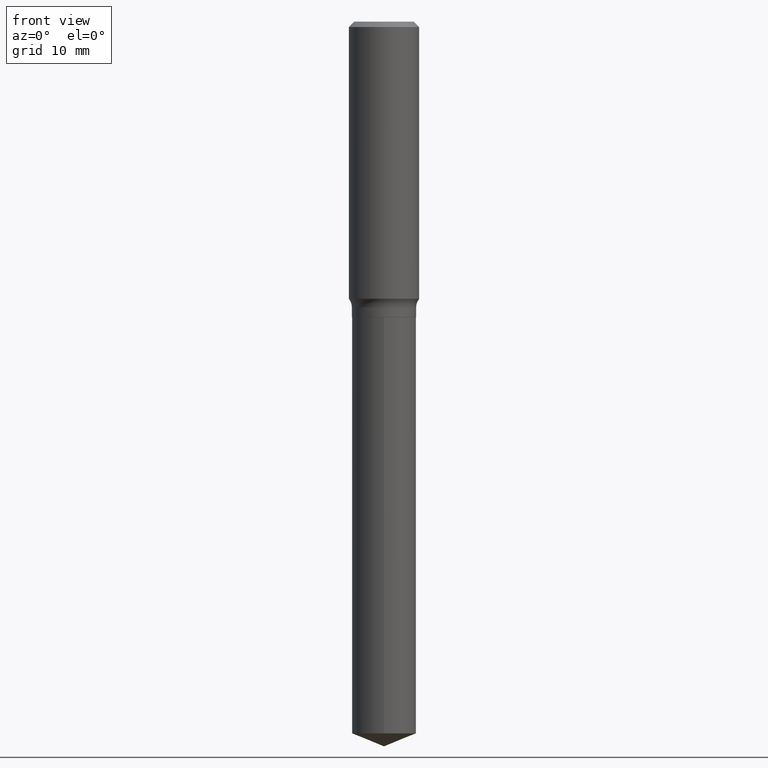
[diagram: clean part render]
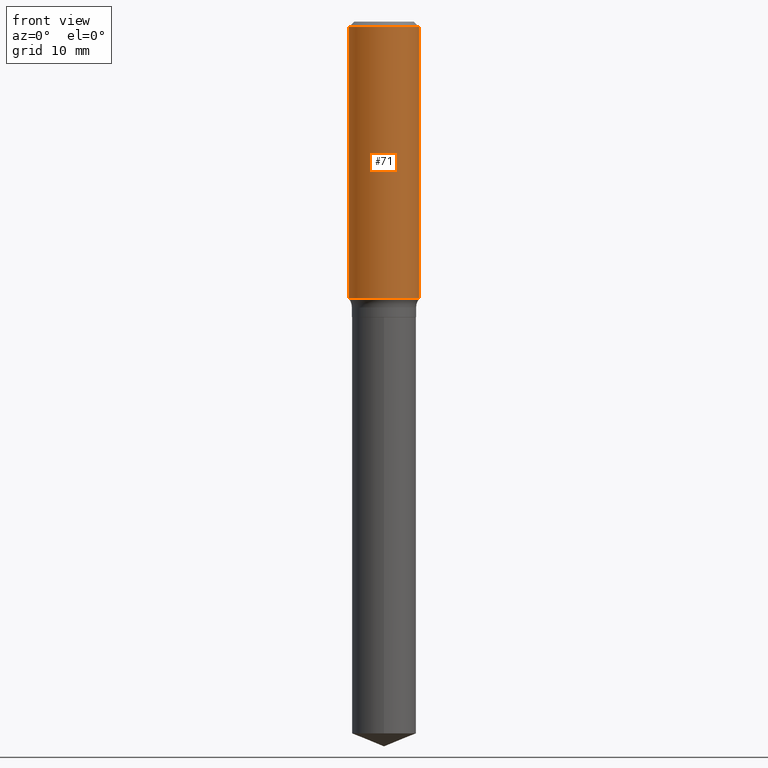
[diagram: same view with one face highlighted and labeled with its STEP entity id]
A machine part, front view. The second image highlights one B-rep face of the part: STEP entity #71.
In plain terms, the highlighted cylindrical surface (edge-blend (fillet) strip) has radius 5 mm, axis along (-0, 0, 1).
Its self-contained STEP definition (entity closure, byte-faithful):
#11 = DIRECTION ( 'NONE',  ( -2.445468806185136877E-29, 3.491481338843145188E-15, 1.000000000000000000 ) ) ;
#16 = CARTESIAN_POINT ( 'NONE',  ( -0.1968500000000002470, -4.014145957537273181E-15, -1.550301664987419059 ) ) ;
#34 = CARTESIAN_POINT ( 'NONE',  ( -0.1968500000000001360, 1.398703375343758182E-15, -9.682923725166790684E-30 ) ) ;
#37 = DIRECTION ( 'NONE',  ( 1.000000000000000000, -6.982962677686266711E-15, 0.000000000000000000 ) ) ;
#71 = ADVANCED_FACE ( 'NONE', ( #406 ), #365, .T. ) ;
#74 = CARTESIAN_POINT ( 'NONE',  ( 0.000000000000000000, 0.000000000000000000, 0.000000000000000000 ) ) ;
#86 = ORIENTED_EDGE ( 'NONE', *, *, #248, .F. ) ;
#103 = VERTEX_POINT ( 'NONE', #326 ) ;
#133 = VERTEX_POINT ( 'NONE', #400 ) ;
#147 = DIRECTION ( 'NONE',  ( -2.445468806185136597E-29, 3.491481338843145583E-15, 1.000000000000000000 ) ) ;
#171 = DIRECTION ( 'NONE',  ( 1.000000000000000000, -6.982962677686266711E-15, 4.876176775795935793E-29 ) ) ;
#178 = DIRECTION ( 'NONE',  ( -2.445468806185136877E-29, 3.491481338843145188E-15, 1.000000000000000000 ) ) ;
#185 = AXIS2_PLACEMENT_3D ( 'NONE', #74, #215, #171 ) ;
#190 = VERTEX_POINT ( 'NONE', #423 ) ;
#194 = CIRCLE ( 'NONE', #476, 0.1968500000000000527 ) ;
#215 = DIRECTION ( 'NONE',  ( -2.445468806185136597E-29, 3.491481338843145583E-15, 1.000000000000000000 ) ) ;
#221 = AXIS2_PLACEMENT_3D ( 'NONE', #375, #379, #340 ) ;
#236 = ORIENTED_EDGE ( 'NONE', *, *, #255, .F. ) ;
#248 = EDGE_CURVE ( 'NONE', #426, #103, #307, .T. ) ;
#255 = EDGE_CURVE ( 'NONE', #103, #133, #194, .T. ) ;
#256 = CIRCLE ( 'NONE', #221, 0.1968500000000002470 ) ;
#260 = ORIENTED_EDGE ( 'NONE', *, *, #275, .T. ) ;
#274 = LINE ( 'NONE', #311, #301 ) ;
#275 = EDGE_CURVE ( 'NONE', #190, #133, #274, .T. ) ;
#295 = EDGE_CURVE ( 'NONE', #426, #190, #256, .T. ) ;
#301 = VECTOR ( 'NONE', #11, 39.37007874015748143 ) ;
#304 = ORIENTED_EDGE ( 'NONE', *, *, #295, .T. ) ;
#307 = LINE ( 'NONE', #34, #435 ) ;
#311 = CARTESIAN_POINT ( 'NONE',  ( 0.1968500000000001360, -1.374596203102542594E-15, 9.598753983154306463E-30 ) ) ;
#326 = CARTESIAN_POINT ( 'NONE',  ( -0.1968500000000000527, -1.359268648713103540E-15, -0.02952750000000022024 ) ) ;
#340 = DIRECTION ( 'NONE',  ( 1.000000000000000000, -6.982962677686269866E-15, 0.000000000000000000 ) ) ;
#365 = CYLINDRICAL_SURFACE ( 'NONE', #185, 0.1968500000000001360 ) ;
#375 = CARTESIAN_POINT ( 'NONE',  ( 3.791214361903613546E-29, -5.412849332881032547E-15, -1.550301664987419059 ) ) ;
#377 = EDGE_LOOP ( 'NONE', ( #86, #304, #260, #236 ) ) ;
#379 = DIRECTION ( 'NONE',  ( -2.445468806185136597E-29, 3.491481338843145583E-15, 1.000000000000000000 ) ) ;
#400 = CARTESIAN_POINT ( 'NONE',  ( 0.1968500000000000527, -1.477690918335233688E-15, -0.02952750000000022024 ) ) ;
#406 = FACE_OUTER_BOUND ( 'NONE', #377, .T. ) ;
#423 = CARTESIAN_POINT ( 'NONE',  ( 0.1968500000000002470, -6.787445535983575733E-15, -1.550301664987419059 ) ) ;
#426 = VERTEX_POINT ( 'NONE', #16 ) ;
#435 = VECTOR ( 'NONE', #178, 39.37007874015748143 ) ;
#476 = AXIS2_PLACEMENT_3D ( 'NONE', #488, #147, #37 ) ;
#488 = CARTESIAN_POINT ( 'NONE',  ( 7.220858017463216492E-31, -1.030947152326917595E-16, -0.02952750000000022024 ) ) ;